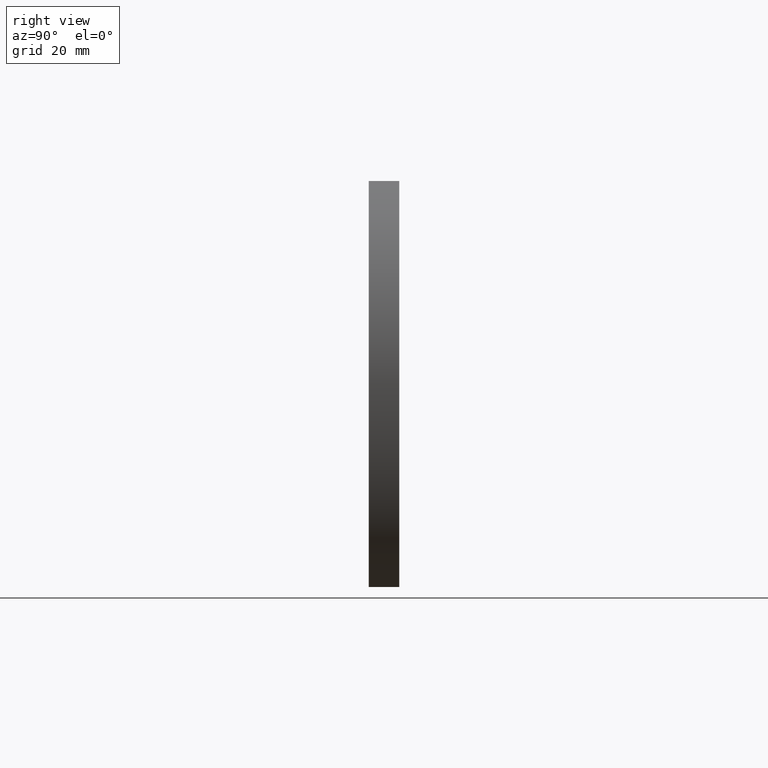
[diagram: clean part render]
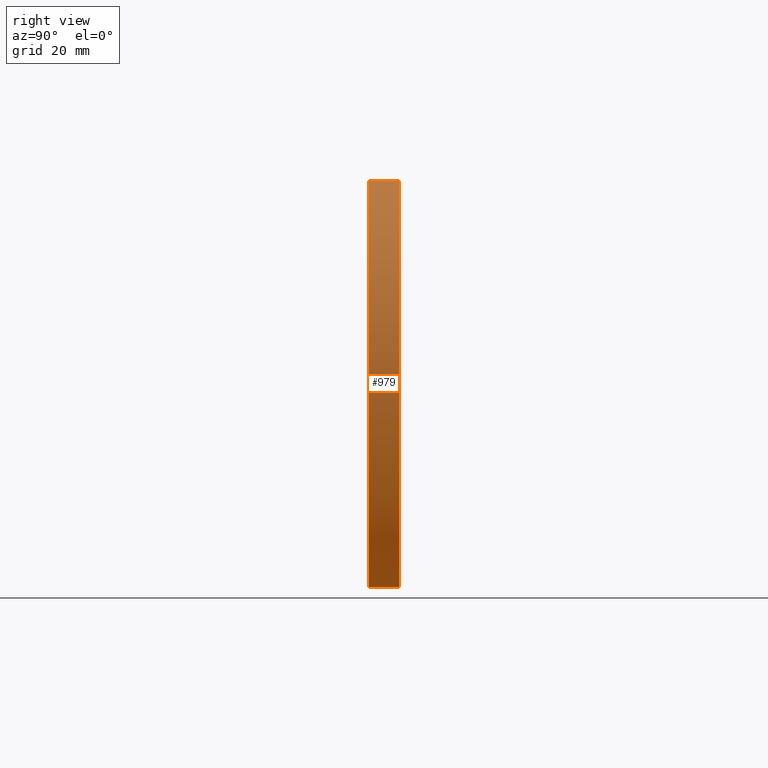
[diagram: same view with one face highlighted and labeled with its STEP entity id]
A machine part, right view. The second image highlights one B-rep face of the part: STEP entity #979.
In plain terms, the highlighted cylindrical surface (partial cylindrical patch) has radius 59.3629 mm, axis along (-0, -1, -0).
Its self-contained STEP definition (entity closure, byte-faithful):
#157 = DIRECTION ( 'NONE',  ( 0.000000000000000000, 1.000000000000000000, -0.000000000000000000 ) ) ;
#392 = DIRECTION ( 'NONE',  ( -0.000000000000000000, -1.000000000000000000, -0.000000000000000000 ) ) ;
#483 = CIRCLE ( 'NONE', #1863, 59.36290322580648393 ) ;
#979 = ADVANCED_FACE ( 'NONE', ( #6912 ), #1976, .T. ) ;
#1095 = CARTESIAN_POINT ( 'NONE',  ( 0.6370967741935185114, 3.000000000000000000, -1.560437050526392987E-16 ) ) ;
#1305 = EDGE_CURVE ( 'NONE', #5882, #7675, #483, .T. ) ;
#1497 = VECTOR ( 'NONE', #9737, 1000.000000000000000 ) ;
#1863 = AXIS2_PLACEMENT_3D ( 'NONE', #10226, #4322, #10290 ) ;
#1976 = CYLINDRICAL_SURFACE ( 'NONE', #7002, 59.36290322580648393 ) ;
#2735 = ORIENTED_EDGE ( 'NONE', *, *, #1305, .F. ) ;
#3279 = DIRECTION ( 'NONE',  ( -0.000000000000000000, -1.000000000000000000, -0.000000000000000000 ) ) ;
#4092 = ORIENTED_EDGE ( 'NONE', *, *, #5276, .T. ) ;
#4247 = EDGE_CURVE ( 'NONE', #7675, #11015, #5197, .T. ) ;
#4322 = DIRECTION ( 'NONE',  ( 0.000000000000000000, 1.000000000000000000, -0.000000000000000000 ) ) ;
#4324 = AXIS2_PLACEMENT_3D ( 'NONE', #7876, #157, #9585 ) ;
#4570 = CARTESIAN_POINT ( 'NONE',  ( 44.50000000000000000, -3.000000000000000000, 40.00000000000001421 ) ) ;
#4689 = ORIENTED_EDGE ( 'NONE', *, *, #10271, .T. ) ;
#5060 = VECTOR ( 'NONE', #3279, 1000.000000000000000 ) ;
#5197 = LINE ( 'NONE', #8364, #5060 ) ;
#5270 = CARTESIAN_POINT ( 'NONE',  ( 44.49999999999999289, -3.000000000000000000, -40.00000000000002842 ) ) ;
#5276 = EDGE_CURVE ( 'NONE', #8341, #11015, #10897, .T. ) ;
#5882 = VERTEX_POINT ( 'NONE', #9377 ) ;
#6419 = CARTESIAN_POINT ( 'NONE',  ( 44.50000000000000000, 3.000000000000000000, 40.00000000000001421 ) ) ;
#6499 = EDGE_LOOP ( 'NONE', ( #4092, #8734, #2735, #4689 ) ) ;
#6912 = FACE_OUTER_BOUND ( 'NONE', #6499, .T. ) ;
#7002 = AXIS2_PLACEMENT_3D ( 'NONE', #1095, #392, #9744 ) ;
#7675 = VERTEX_POINT ( 'NONE', #9467 ) ;
#7876 = CARTESIAN_POINT ( 'NONE',  ( 0.6370967741935185114, -3.000000000000000000, -1.560437050526392987E-16 ) ) ;
#8341 = VERTEX_POINT ( 'NONE', #4570 ) ;
#8364 = CARTESIAN_POINT ( 'NONE',  ( 44.49999999999999289, 3.000000000000000000, -40.00000000000002842 ) ) ;
#8734 = ORIENTED_EDGE ( 'NONE', *, *, #4247, .F. ) ;
#9377 = CARTESIAN_POINT ( 'NONE',  ( 44.50000000000000000, 3.000000000000000000, 40.00000000000001421 ) ) ;
#9467 = CARTESIAN_POINT ( 'NONE',  ( 44.49999999999999289, 3.000000000000000000, -40.00000000000002842 ) ) ;
#9585 = DIRECTION ( 'NONE',  ( 0.000000000000000000, 0.000000000000000000, -1.000000000000000000 ) ) ;
#9737 = DIRECTION ( 'NONE',  ( -0.000000000000000000, -1.000000000000000000, -0.000000000000000000 ) ) ;
#9744 = DIRECTION ( 'NONE',  ( 0.000000000000000000, 0.000000000000000000, -1.000000000000000000 ) ) ;
#10226 = CARTESIAN_POINT ( 'NONE',  ( 0.6370967741935185114, 3.000000000000000000, -1.560437050526392987E-16 ) ) ;
#10271 = EDGE_CURVE ( 'NONE', #5882, #8341, #10556, .T. ) ;
#10290 = DIRECTION ( 'NONE',  ( 0.000000000000000000, 0.000000000000000000, -1.000000000000000000 ) ) ;
#10556 = LINE ( 'NONE', #6419, #1497 ) ;
#10897 = CIRCLE ( 'NONE', #4324, 59.36290322580648393 ) ;
#11015 = VERTEX_POINT ( 'NONE', #5270 ) ;